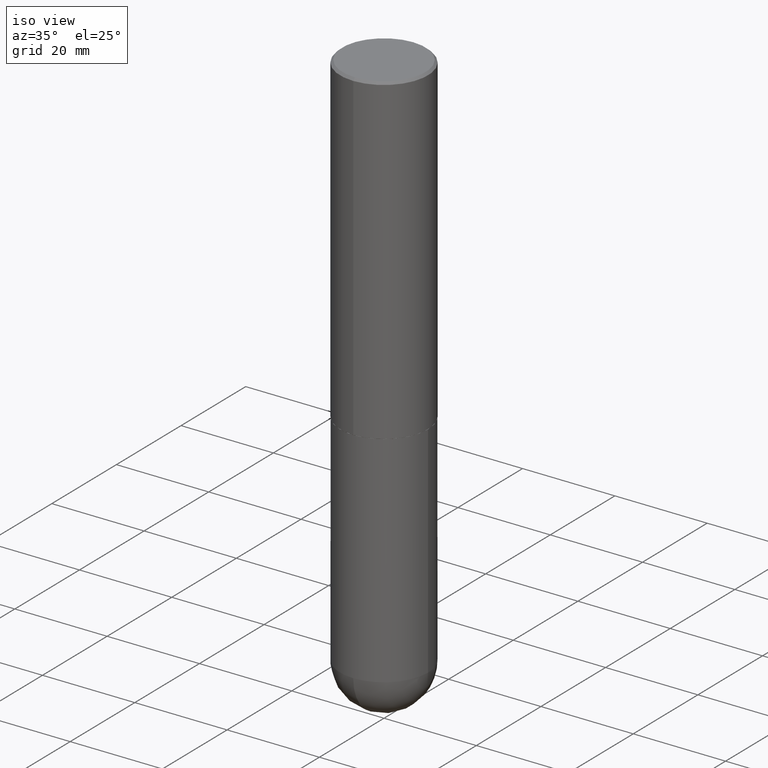
[diagram: clean part render]
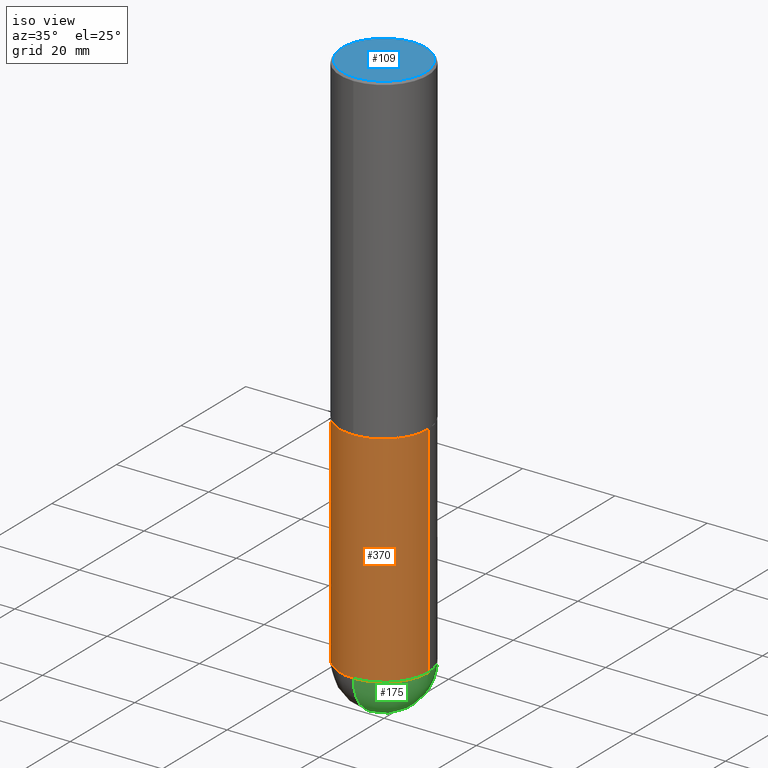
[diagram: same view with three faces highlighted in distinct colors, each labeled with its STEP entity id]
A machine part, iso view with three faces highlighted in distinct colors.
Their STEP definitions:

[orange] entity #370 — the highlighted cylindrical surface (partial cylindrical patch) has radius 9.525 mm, axis along (-0, 0, 1).
#10 = AXIS2_PLACEMENT_3D ( 'NONE', #367, #11, #366 ) ;
#11 = DIRECTION ( 'NONE',  ( -2.445468806185136597E-29, 3.491481338843145583E-15, 1.000000000000000000 ) ) ;
#15 = CARTESIAN_POINT ( 'NONE',  ( 1.131029322860625676E-28, -1.614810119214955014E-14, -4.625000000000000000 ) ) ;
#16 = DIRECTION ( 'NONE',  ( 1.000000000000000000, -6.982962677686270655E-15, 0.000000000000000000 ) ) ;
#22 = ORIENTED_EDGE ( 'NONE', *, *, #257, .F. ) ;
#27 = AXIS2_PLACEMENT_3D ( 'NONE', #15, #157, #16 ) ;
#32 = DIRECTION ( 'NONE',  ( -2.445468806185136877E-29, 3.491481338843145188E-15, 1.000000000000000000 ) ) ;
#33 = VECTOR ( 'NONE', #32, 39.37007874015748143 ) ;
#48 = DIRECTION ( 'NONE',  ( -2.445468806185136877E-29, 3.491481338843145188E-15, 1.000000000000000000 ) ) ;
#51 = VERTEX_POINT ( 'NONE', #332 ) ;
#55 = CARTESIAN_POINT ( 'NONE',  ( 6.725039217009124520E-29, -9.601573681818649859E-15, -2.750000000000000000 ) ) ;
#60 = EDGE_CURVE ( 'NONE', #395, #246, #330, .T. ) ;
#66 = ORIENTED_EDGE ( 'NONE', *, *, #410, .T. ) ;
#68 = VECTOR ( 'NONE', #48, 39.37007874015748143 ) ;
#80 = CARTESIAN_POINT ( 'NONE',  ( -0.3750000000000000555, -1.021030217788372194E-14, -2.750000000000000000 ) ) ;
#99 = ORIENTED_EDGE ( 'NONE', *, *, #60, .T. ) ;
#131 = AXIS2_PLACEMENT_3D ( 'NONE', #55, #176, #191 ) ;
#136 = DIRECTION ( 'NONE',  ( 1.000000000000000000, -6.982962677686270655E-15, 0.000000000000000000 ) ) ;
#157 = DIRECTION ( 'NONE',  ( -2.445468806185136597E-29, 3.491481338843145583E-15, 1.000000000000000000 ) ) ;
#160 = ORIENTED_EDGE ( 'NONE', *, *, #285, .F. ) ;
#161 = FACE_OUTER_BOUND ( 'NONE', #308, .T. ) ;
#176 = DIRECTION ( 'NONE',  ( -2.445468806185136597E-29, 3.491481338843145583E-15, 1.000000000000000000 ) ) ;
#191 = DIRECTION ( 'NONE',  ( 1.000000000000000000, -6.982962677686266711E-15, 0.000000000000000000 ) ) ;
#204 = VERTEX_POINT ( 'NONE', #284 ) ;
#213 = AXIS2_PLACEMENT_3D ( 'NONE', #234, #365, #136 ) ;
#215 = CARTESIAN_POINT ( 'NONE',  ( -2.664535259100265651E-15, -0.3750000000000165978, -4.624999999999999112 ) ) ;
#221 = CARTESIAN_POINT ( 'NONE',  ( -0.3750000000000001110, -1.021030217788372352E-14, -4.625000000000000000 ) ) ;
#222 = ORIENTED_EDGE ( 'NONE', *, *, #348, .T. ) ;
#224 = CIRCLE ( 'NONE', #131, 0.3750000000000000555 ) ;
#234 = CARTESIAN_POINT ( 'NONE',  ( 1.131029322860625676E-28, -1.614810119214955014E-14, -4.625000000000000000 ) ) ;
#246 = VERTEX_POINT ( 'NONE', #215 ) ;
#257 = EDGE_CURVE ( 'NONE', #395, #346, #311, .T. ) ;
#279 = LINE ( 'NONE', #404, #68 ) ;
#284 = CARTESIAN_POINT ( 'NONE',  ( 0.3750000000000001110, -1.549344844111645238E-14, -4.625000000000000000 ) ) ;
#285 = EDGE_CURVE ( 'NONE', #346, #51, #224, .T. ) ;
#308 = EDGE_LOOP ( 'NONE', ( #22, #99, #222, #66, #160 ) ) ;
#311 = LINE ( 'NONE', #318, #33 ) ;
#318 = CARTESIAN_POINT ( 'NONE',  ( -0.3750000000000001110, 2.664535259100376486E-15, -1.844600658845590159E-29 ) ) ;
#324 = CYLINDRICAL_SURFACE ( 'NONE', #10, 0.3750000000000001110 ) ;
#330 = CIRCLE ( 'NONE', #213, 0.3750000000000001110 ) ;
#332 = CARTESIAN_POINT ( 'NONE',  ( 0.3750000000000000555, -1.222018468595100145E-14, -2.750000000000000000 ) ) ;
#346 = VERTEX_POINT ( 'NONE', #80 ) ;
#348 = EDGE_CURVE ( 'NONE', #246, #204, #371, .T. ) ;
#365 = DIRECTION ( 'NONE',  ( -2.445468806185136597E-29, 3.491481338843145583E-15, 1.000000000000000000 ) ) ;
#366 = DIRECTION ( 'NONE',  ( 1.000000000000000000, -6.982962677686265922E-15, 4.876176775795935793E-29 ) ) ;
#367 = CARTESIAN_POINT ( 'NONE',  ( 0.000000000000000000, 0.000000000000000000, 0.000000000000000000 ) ) ;
#370 = ADVANCED_FACE ( 'NONE', ( #161 ), #324, .T. ) ;
#371 = CIRCLE ( 'NONE', #27, 0.3750000000000001110 ) ;
#395 = VERTEX_POINT ( 'NONE', #221 ) ;
#404 = CARTESIAN_POINT ( 'NONE',  ( 0.3750000000000001110, -2.618611004132350411E-15, 1.828566290923476483E-29 ) ) ;
#410 = EDGE_CURVE ( 'NONE', #204, #51, #279, .T. ) ;

[blue] entity #109 — the highlighted planar face has unit normal (0, -0, -1).
#12 = VERTEX_POINT ( 'NONE', #169 ) ;
#19 = ORIENTED_EDGE ( 'NONE', *, *, #251, .T. ) ;
#36 = CARTESIAN_POINT ( 'NONE',  ( -4.804403837961357100E-45, 6.860857953616112441E-31, 1.964820920350397448E-16 ) ) ;
#62 = DIRECTION ( 'NONE',  ( -6.982962677686266711E-15, -1.000000000000000000, 3.491848993745739476E-15 ) ) ;
#69 = EDGE_CURVE ( 'NONE', #295, #12, #235, .T. ) ;
#75 = ORIENTED_EDGE ( 'NONE', *, *, #69, .T. ) ;
#104 = AXIS2_PLACEMENT_3D ( 'NONE', #36, #353, #62 ) ;
#109 = ADVANCED_FACE ( 'NONE', ( #265 ), #196, .F. ) ;
#111 = CIRCLE ( 'NONE', #104, 0.3549999999999997602 ) ;
#162 = DIRECTION ( 'NONE',  ( -2.445212074138828297E-29, 3.491848993745739476E-15, 1.000000000000000000 ) ) ;
#169 = CARTESIAN_POINT ( 'NONE',  ( 2.548781377355486324E-15, 0.3549999999999997602, -1.043124300744696816E-15 ) ) ;
#196 = PLANE ( 'NONE',  #197 ) ;
#197 = AXIS2_PLACEMENT_3D ( 'NONE', #237, #329, #328 ) ;
#230 = CARTESIAN_POINT ( 'NONE',  ( -2.504081769186607427E-15, -0.3549999999999997602, 1.436088484814776552E-15 ) ) ;
#235 = CIRCLE ( 'NONE', #386, 0.3549999999999997602 ) ;
#237 = CARTESIAN_POINT ( 'NONE',  ( 2.478951750578623026E-15, 0.3549999999999997602, -1.141365346762216750E-15 ) ) ;
#251 = EDGE_CURVE ( 'NONE', #12, #295, #111, .T. ) ;
#265 = FACE_OUTER_BOUND ( 'NONE', #277, .T. ) ;
#277 = EDGE_LOOP ( 'NONE', ( #19, #75 ) ) ;
#295 = VERTEX_POINT ( 'NONE', #230 ) ;
#328 = DIRECTION ( 'NONE',  ( 6.982962677686265922E-15, 1.000000000000000000, -3.491848993745739476E-15 ) ) ;
#329 = DIRECTION ( 'NONE',  ( 2.445212074138828017E-29, -3.491848993745739476E-15, -1.000000000000000000 ) ) ;
#353 = DIRECTION ( 'NONE',  ( -2.445212074138828297E-29, 3.491848993745739476E-15, 1.000000000000000000 ) ) ;
#368 = DIRECTION ( 'NONE',  ( -6.982962677686266711E-15, -1.000000000000000000, 3.491848993745739476E-15 ) ) ;
#386 = AXIS2_PLACEMENT_3D ( 'NONE', #399, #162, #368 ) ;
#399 = CARTESIAN_POINT ( 'NONE',  ( -4.804403837961357100E-45, 6.860857953616112441E-31, 1.964820920350397448E-16 ) ) ;

[green] entity #175 — the highlighted spherical surface has radius 9.525 mm.
#1 = SPHERICAL_SURFACE ( 'NONE', #183, 0.3750000000000003886 ) ;
#3 = DIRECTION ( 'NONE',  ( 6.982962677686266711E-15, 1.000000000000000000, -2.913971193241878005E-15 ) ) ;
#15 = CARTESIAN_POINT ( 'NONE',  ( 1.131029322860625676E-28, -1.614810119214955014E-14, -4.625000000000000000 ) ) ;
#16 = DIRECTION ( 'NONE',  ( 1.000000000000000000, -6.982962677686270655E-15, 0.000000000000000000 ) ) ;
#27 = AXIS2_PLACEMENT_3D ( 'NONE', #15, #157, #16 ) ;
#91 = VERTEX_POINT ( 'NONE', #296 ) ;
#102 = EDGE_LOOP ( 'NONE', ( #261, #360, #322, #216 ) ) ;
#108 = DIRECTION ( 'NONE',  ( 6.982962677686265922E-15, 1.000000000000000000, 0.000000000000000000 ) ) ;
#124 = CARTESIAN_POINT ( 'NONE',  ( 1.097917345069237163E-28, -1.662228356028959886E-14, -4.625000000000000000 ) ) ;
#138 = AXIS2_PLACEMENT_3D ( 'NONE', #254, #178, #260 ) ;
#157 = DIRECTION ( 'NONE',  ( -2.445468806185136597E-29, 3.491481338843145583E-15, 1.000000000000000000 ) ) ;
#166 = AXIS2_PLACEMENT_3D ( 'NONE', #359, #326, #401 ) ;
#175 = ADVANCED_FACE ( 'NONE', ( #211 ), #1, .T. ) ;
#178 = DIRECTION ( 'NONE',  ( -1.000000000000000000, 7.105427357601001070E-15, -4.926315508542082329E-29 ) ) ;
#183 = AXIS2_PLACEMENT_3D ( 'NONE', #124, #258, #3 ) ;
#188 = DIRECTION ( 'NONE',  ( 1.000000000000000000, -6.982962677686265922E-15, 4.883557194083112340E-29 ) ) ;
#204 = VERTEX_POINT ( 'NONE', #284 ) ;
#211 = FACE_OUTER_BOUND ( 'NONE', #102, .T. ) ;
#212 = CARTESIAN_POINT ( 'NONE',  ( 2.618611004132463218E-15, 0.3749999999999838463, -4.625000000000000888 ) ) ;
#215 = CARTESIAN_POINT ( 'NONE',  ( -2.664535259100265651E-15, -0.3750000000000165978, -4.624999999999999112 ) ) ;
#216 = ORIENTED_EDGE ( 'NONE', *, *, #348, .F. ) ;
#217 = EDGE_CURVE ( 'NONE', #91, #246, #357, .T. ) ;
#227 = VERTEX_POINT ( 'NONE', #212 ) ;
#246 = VERTEX_POINT ( 'NONE', #215 ) ;
#254 = CARTESIAN_POINT ( 'NONE',  ( 1.097917345069237163E-28, -1.662228356028959886E-14, -4.625000000000000000 ) ) ;
#258 = DIRECTION ( 'NONE',  ( -1.000000000000000000, 6.982962677686266711E-15, -4.883557194083113462E-29 ) ) ;
#260 = DIRECTION ( 'NONE',  ( -7.105427357600999492E-15, -1.000000000000000000, 0.000000000000000000 ) ) ;
#261 = ORIENTED_EDGE ( 'NONE', *, *, #217, .F. ) ;
#269 = CARTESIAN_POINT ( 'NONE',  ( 1.097917345069237163E-28, -1.662228356028959886E-14, -4.625000000000000000 ) ) ;
#282 = CIRCLE ( 'NONE', #166, 0.3750000000000001110 ) ;
#284 = CARTESIAN_POINT ( 'NONE',  ( 0.3750000000000001110, -1.549344844111645238E-14, -4.625000000000000000 ) ) ;
#294 = AXIS2_PLACEMENT_3D ( 'NONE', #269, #188, #108 ) ;
#296 = CARTESIAN_POINT ( 'NONE',  ( 1.191225862093391378E-28, -1.790862693487176734E-14, -5.000000000000000000 ) ) ;
#320 = CIRCLE ( 'NONE', #294, 0.3750000000000003886 ) ;
#322 = ORIENTED_EDGE ( 'NONE', *, *, #405, .F. ) ;
#326 = DIRECTION ( 'NONE',  ( -2.445468806185136597E-29, 3.491481338843145583E-15, 1.000000000000000000 ) ) ;
#335 = EDGE_CURVE ( 'NONE', #91, #227, #320, .T. ) ;
#348 = EDGE_CURVE ( 'NONE', #246, #204, #371, .T. ) ;
#357 = CIRCLE ( 'NONE', #138, 0.3750000000000003886 ) ;
#359 = CARTESIAN_POINT ( 'NONE',  ( 1.131029322860625676E-28, -1.614810119214955014E-14, -4.625000000000000000 ) ) ;
#360 = ORIENTED_EDGE ( 'NONE', *, *, #335, .T. ) ;
#371 = CIRCLE ( 'NONE', #27, 0.3750000000000001110 ) ;
#401 = DIRECTION ( 'NONE',  ( 1.000000000000000000, -6.982962677686270655E-15, 0.000000000000000000 ) ) ;
#405 = EDGE_CURVE ( 'NONE', #204, #227, #282, .T. ) ;